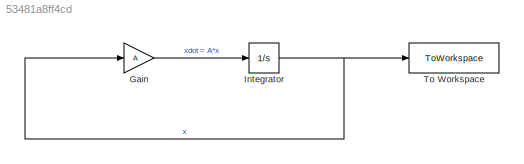
MODEL slx_53481a8ff4cd
KIND model
CONFIG AbsTol = auto
CONFIG EnableMultiTasking = off
CONFIG FixedStep = auto
CONFIG MaxStep = auto
CONFIG MinStep = auto
CONFIG RelTol = 1e-3
CONFIG SampleTimeConstraint = Unconstrained
CONFIG SolverName = VariableStepAuto
CONFIG StartTime = 0.0
CONFIG StopTime = tFinal
BLOCK [Gain] Gain
  Gain = A
  Multiplication = Matrix(K*u)
BLOCK [Integrator] Integrator
  InitialCondition = x0
  Ports = [1, 1]
BLOCK [ToWorkspace] To Workspace
  FixptAsFi = on
  MaxDataPoints = inf
  Ports = [1]
  SampleTime = -1
  SaveFormat = Timeseries
  VariableName = simout_x
LINE Gain:1 -> Integrator:1
NET Integrator:1 -> Gain:1, To Workspace:1
note: NET lines group one-source signal fan-out (src -> all destinations, sorted); 1:1 wires keep LINE
